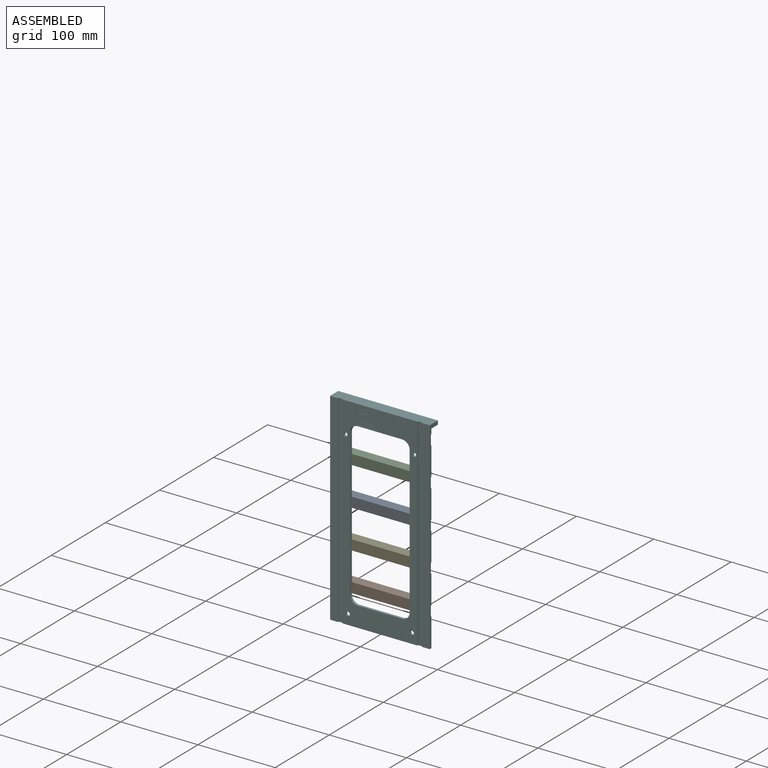
[diagram: assembled view]
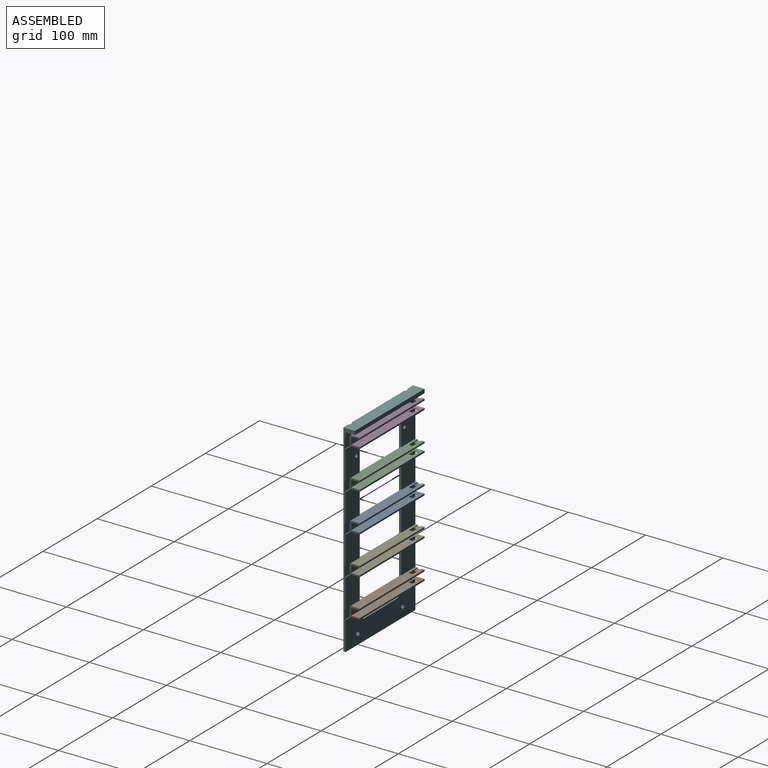
[diagram: assembled view, second angle]
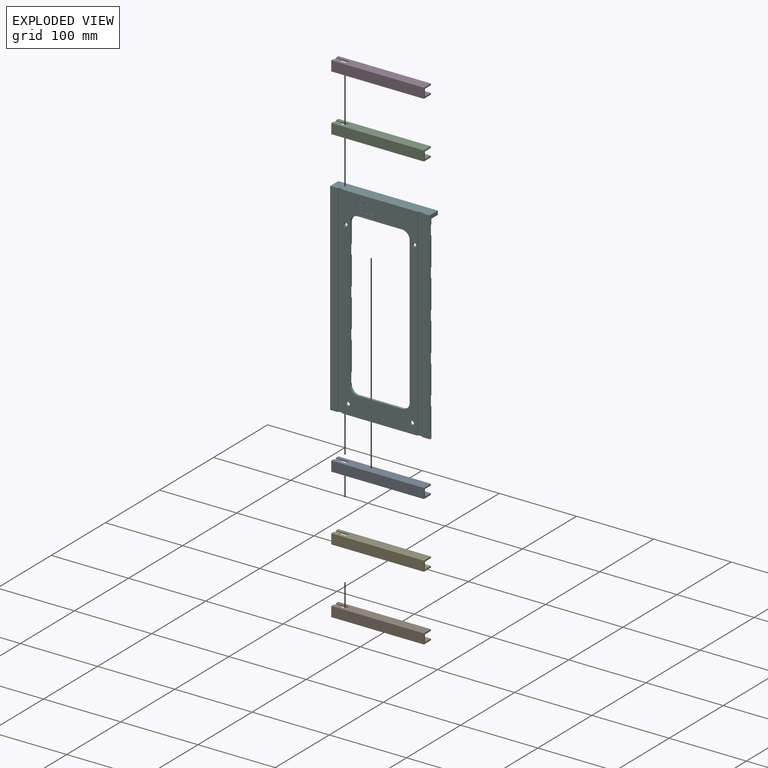
[diagram: exploded view]
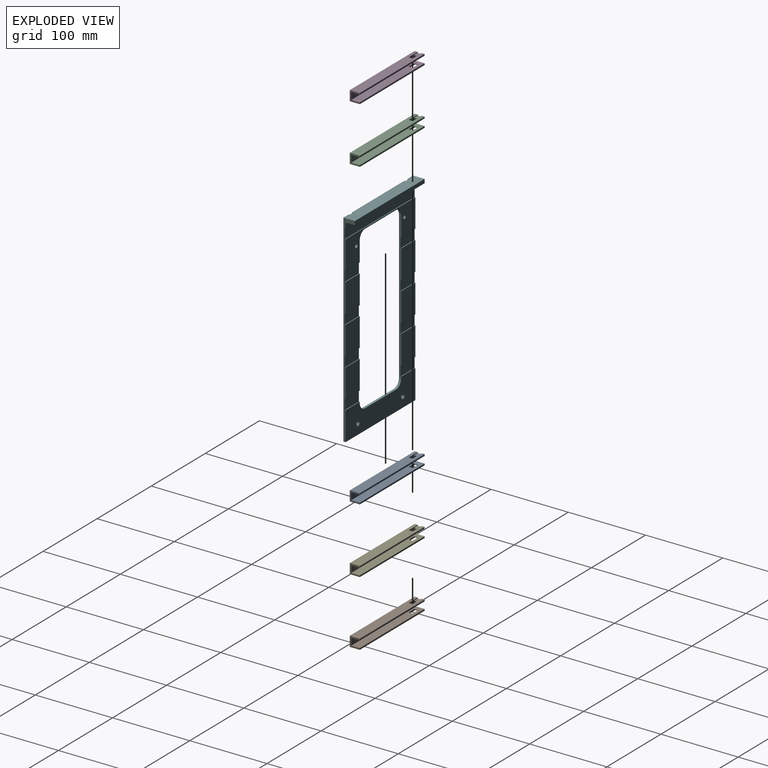
[diagram: exploded view, second angle]
ASSEMBLY  parts=6 mates=5
PART A: 24 faces, bbox 120x13x13 mm
  f0: plane 120x13mm, normal (0,0,-1), area 1477.5mm2, adj f3,f6,f7,f8,f13,f14,f16
  f1: plane 120x11mm, normal (0,0,-1), area 1270mm2, adj f3,f5,f6,f9,f10,f11,f18,f19
  f2: plane 120x11mm, normal (0,0,1), area 1270mm2, adj f3,f6,f7,f9,f13,f14,f16,f17
  f3: plane 13x13mm, normal (1,0,0), area 57mm2, adj f0,f1,f2,f4,f5,f7,f8,f9
  f4: plane 120x13mm, normal (0,0,1), area 1477.5mm2, adj f3,f5,f6,f8,f10,f11,f19
  f5: plane 120x2mm, normal (0,-1,0), area 240mm2, adj f1,f3,f4,f6
  f6: plane 13x13mm, normal (-1,0,0), area 70mm2, adj f0,f1,f2,f4,f5,f7,f8,f9
  f7: plane 120x2mm, normal (0,-1,0), area 240mm2, adj f0,f2,f3,f6
  f8: plane 120x13mm, normal (0,1,0), area 1560mm2, adj f0,f3,f4,f6
  f9: plane 120x9mm, normal (0,-1,0), area 1080mm2, adj f1,f2,f3,f6
  f10: plane 16.5x2mm, normal (0,-1,0), area 26.5mm2, adj f1,f3,f4,f12,f18,f19,f21,f23
  f11: plane 16.5x2mm, normal (0,1,0), area 26.5mm2, adj f1,f3,f4,f12,f18,f19,f21,f23
  f12: plane 5.9x5mm, normal (0,0,1), area 29.5mm2, adj f10,f11,f21,f23
  f13: plane 16.5x2mm, normal (0,1,0), area 26.5mm2, adj f0,f2,f3,f15,f16,f17,f20,f22
  f14: plane 16.5x2mm, normal (0,-1,0), area 26.5mm2, adj f0,f2,f3,f15,f16,f17,f20,f22
  f15: plane 5.9x5mm, normal (0,0,-1), area 29.5mm2, adj f13,f14,f20,f22
  f16: plane 5x2mm, normal (1,0,0), area 10mm2, adj f0,f2,f13,f14
  f17: plane 5x0.7mm, normal (-1,0,0), area 3.5mm2, adj f2,f13,f14,f20
  f18: plane 5x0.7mm, normal (-1,0,0), area 3.5mm2, adj f1,f10,f11,f21
  f19: plane 5x2mm, normal (1,0,0), area 10mm2, adj f1,f4,f10,f11
  f20: cylinder r=0.3mm len=5mm, axis (0,1,0), area 2.4mm2, adj f13,f14,f15,f17
  f21: cylinder r=0.3mm len=5mm, axis (0,-1,0), area 2.4mm2, adj f10,f11,f12,f18
  f22: cylinder r=0.3mm len=5mm, axis (0,1,0), area 2.4mm2, adj f3,f13,f14,f15
  f23: cylinder r=0.3mm len=5mm, axis (0,1,0), area 2.4mm2, adj f3,f10,f11,f12
PART B: same geometry as A
PART C: same geometry as A
PART D: same geometry as A
PART E: same geometry as A
PART F: 201 faces, bbox 129x15x262 mm
  f0: plane 23.5x23.5mm, normal (0,-1,0), area 475.6mm2, adj f68,f69,f70,f71,f72,f73,f74,f75
  f1: plane 262x97mm, normal (0,-1,0), area 8705.2mm2, adj f3,f4,f5,f14,f15,f19,f20,f21
  f2: plane 262x10mm, normal (0,-1,0), area 2620mm2, adj f3,f16,f19,f66
  f3: plane 129x15mm, normal (0,0,1), area 1919.4mm2, adj f1,f2,f16,f18,f28,f29,f62,f63
  f4: cylinder r=2.4mm len=4.8mm, axis (0,1,0), area 27.1mm2, adj f1,f61
  f5: cylinder r=2.4mm len=4.8mm, axis (0,1,0), area 27.1mm2, adj f1,f59
  f6: plane 129x37mm, normal (0,1,0), area 2038.5mm2, adj f14,f15,f16,f18,f21,f22,f23,f26
  f7: plane 129x37.4mm, normal (0,1,0), area 3933.2mm2, adj f14,f15,f16,f18,f19,f20,f24,f25
  f8: plane 37x26mm, normal (0,1,0), area 962mm2, adj f15,f16,f38,f42
  f9: plane 37x26mm, normal (0,1,0), area 962mm2, adj f14,f18,f53,f55
  f10: plane 37x26mm, normal (0,1,0), area 962mm2, adj f15,f16,f35,f39
  f11: plane 37x26mm, normal (0,1,0), area 962mm2, adj f14,f18,f50,f52
  f12: plane 37x26mm, normal (0,1,0), area 962mm2, adj f15,f16,f32,f36
  f13: plane 37x26mm, normal (0,1,0), area 962mm2, adj f14,f18,f47,f49
  f14: plane 190x3mm, normal (1,0,0), area 518mm2, adj f1,f6,f7,f9,f11,f13,f20,f21
  f15: plane 190x3mm, normal (-1,0,0), area 518mm2, adj f1,f6,f7,f8,f10,f12,f23,f24
  f16: plane 262x15mm, normal (1,0,0), area 781mm2, adj f2,f3,f6,f7,f8,f10,f12,f17
  f17: plane 129x6.6mm, normal (0,1,0), area 851.4mm2, adj f16,f18,f30,f43
  f18: plane 262x15mm, normal (-1,0,0), area 781mm2, adj f3,f6,f7,f9,f11,f13,f17,f19
  f19: plane 129x3mm, normal (0,0,-1), area 371.4mm2, adj f1,f2,f7,f16,f18,f28,f62,f63
  f20: cylinder r=10mm len=10mm, axis (0,1,0), area 47.1mm2, adj f1,f7,f14,f25
  f21: cylinder r=10mm len=10mm, axis (0,1,0), area 47.1mm2, adj f1,f6,f14,f22
  f22: plane 57x3mm, normal (0,0,-1), area 171mm2, adj f1,f6,f21,f23
  f23: cylinder r=10mm len=10mm, axis (0,1,0), area 47.1mm2, adj f1,f6,f15,f22
  f24: cylinder r=10mm len=10mm, axis (0,1,0), area 47.1mm2, adj f1,f7,f15,f25
  f25: plane 57x3mm, normal (0,0,1), area 171mm2, adj f1,f7,f20,f24
  f26: cylinder r=2.4mm len=4.8mm, axis (0,1,0), area 45.2mm2, adj f1,f6
  f27: cylinder r=2.4mm len=4.8mm, axis (0,1,0), area 45.2mm2, adj f1,f6
  f28: plane 262x10mm, normal (0,-1,0), area 2620mm2, adj f3,f18,f19,f62
  f29: plane 129x5mm, normal (0,1,0), area 645mm2, adj f3,f16,f18,f30
  f30: plane 129x12mm, normal (0,0,-1), area 1548mm2, adj f16,f17,f18,f29
  f31: plane 26x13mm, normal (0,1,0), area 338mm2, adj f15,f16,f32,f33
  f32: plane 26x1mm, normal (0,0,1), area 26mm2, adj f12,f15,f16,f31
  f33: plane 26x1mm, normal (0,0,-1), area 26mm2, adj f6,f15,f16,f31
  f34: plane 26x13mm, normal (0,1,0), area 338mm2, adj f15,f16,f35,f36
  f35: plane 26x1mm, normal (0,0,1), area 26mm2, adj f10,f15,f16,f34
  f36: plane 26x1mm, normal (0,0,-1), area 26mm2, adj f12,f15,f16,f34
  f37: plane 26x13mm, normal (0,1,0), area 338mm2, adj f15,f16,f38,f39
  f38: plane 26x1mm, normal (0,0,1), area 26mm2, adj f8,f15,f16,f37
  f39: plane 26x1mm, normal (0,0,-1), area 26mm2, adj f10,f15,f16,f37
  f40: plane 26x13mm, normal (0,1,0), area 338mm2, adj f15,f16,f41,f42
  f41: plane 26x1mm, normal (0,0,1), area 26mm2, adj f7,f15,f16,f40
  f42: plane 26x1mm, normal (0,0,-1), area 26mm2, adj f8,f15,f16,f40
  f43: plane 129x1mm, normal (0,0,-1), area 129mm2, adj f16,f17,f18,f45
  f44: plane 129x1mm, normal (0,0,1), area 129mm2, adj f6,f16,f18,f45
  f45: plane 129x13mm, normal (0,1,0), area 1677mm2, adj f16,f18,f43,f44
  f46: plane 26x1mm, normal (0,0,-1), area 26mm2, adj f6,f14,f18,f48
  f47: plane 26x1mm, normal (0,0,1), area 26mm2, adj f13,f14,f18,f48
  f48: plane 26x13mm, normal (0,1,0), area 338mm2, adj f14,f18,f46,f47
  f49: plane 26x1mm, normal (0,0,-1), area 26mm2, adj f13,f14,f18,f51
  f50: plane 26x1mm, normal (0,0,1), area 26mm2, adj f11,f14,f18,f51
  f51: plane 26x13mm, normal (0,1,0), area 338mm2, adj f14,f18,f49,f50
  f52: plane 26x1mm, normal (0,0,-1), area 26mm2, adj f11,f14,f18,f54
  f53: plane 26x1mm, normal (0,0,1), area 26mm2, adj f9,f14,f18,f54
  f54: plane 26x13mm, normal (0,1,0), area 338mm2, adj f14,f18,f52,f53
  f55: plane 26x1mm, normal (0,0,-1), area 26mm2, adj f9,f14,f18,f57
  f56: plane 26x1mm, normal (0,0,1), area 26mm2, adj f7,f14,f18,f57
  f57: plane 26x13mm, normal (0,1,0), area 338mm2, adj f14,f18,f55,f56
  f58: cylinder r=3mm len=6mm, axis (0,1,0), area 22.6mm2, adj f7,f59
  f59: plane 6x6mm, normal (0,1,0), area 10.2mm2, adj f5,f58
  f60: cylinder r=3mm len=6mm, axis (0,1,0), area 22.6mm2, adj f7,f61
  f61: plane 6x6mm, normal (0,1,0), area 10.2mm2, adj f4,f60
  f62: plane 262x1.3mm, normal (1,0,0), area 340.6mm2, adj f3,f19,f28,f64
  f63: plane 262x1.3mm, normal (-1,0,0), area 340.6mm2, adj f1,f3,f19,f64
  f64: plane 262x6mm, normal (0,-1,0), area 1572mm2, adj f3,f19,f62,f63
  f65: plane 262x1.3mm, normal (1,0,0), area 340.6mm2, adj f1,f3,f19,f67
  f66: plane 262x1.3mm, normal (-1,0,0), area 340.6mm2, adj f2,f3,f19,f67
  f67: plane 262x6mm, normal (0,-1,0), area 1572mm2, adj f3,f19,f65,f66
  f68: plane 23.5x0.5mm, normal (0,0,-1), area 11.7mm2, adj f0,f1,f69,f71
  f69: plane 23.5x0.5mm, normal (1,0,0), area 11.8mm2, adj f0,f1,f68,f70
  f70: plane 23.5x0.5mm, normal (0,0,1), area 11.7mm2, adj f0,f1,f69,f71
  f71: plane 23.5x0.5mm, normal (-1,0,0), area 11.8mm2, adj f0,f1,f68,f70
  f72: plane 0.55x0.5mm, normal (1,0,0), area 0.3mm2, adj f0,f73,f75,f76
  f73: plane 1.78x0.5mm, normal (0,0,1), area 0.9mm2, adj f0,f72,f74,f76
  f74: plane 0.55x0.5mm, normal (-1,0,0), area 0.3mm2, adj f0,f73,f75,f76
  f75: plane 1.78x0.5mm, normal (0,0,-1), area 0.9mm2, adj f0,f72,f74,f76
  f76: plane 1.78x0.55mm, normal (0,-1,0), area 1mm2, adj f72,f73,f74,f75
  f77: extruded ~0.76x0.5mm, area 0.4mm2, adj f78,f95,f96,f196
  f78: extruded ~0.73x0.5mm, area 0.4mm2, adj f77,f79,f96,f196
  f79: extruded ~0.87x0.5mm, area 0.5mm2, adj f78,f80,f96,f196
  f80: plane 2.08x0.5mm, normal (0,0,-1), area 1mm2, adj f79,f95,f96,f196
  f81: extruded ~1.39x0.54mm, area 0.8mm2, adj f0,f82,f94,f96
  f82: extruded ~0.69x0.5mm, area 0.3mm2, adj f0,f81,f83,f96
  f83: extruded ~0.6x0.5mm, area 0.3mm2, adj f0,f82,f84,f96
  f84: plane 0.54x0.5mm, normal (-1,0,0), area 0.3mm2, adj f0,f83,f85,f96
  f85: extruded ~1.27x0.5mm, area 0.7mm2, adj f0,f84,f86,f96
  f86: extruded ~0.95x0.5mm, area 0.5mm2, adj f0,f85,f87,f96
  f87: extruded ~1.06x0.5mm, area 0.6mm2, adj f0,f86,f88,f96
  f88: plane 2.74x0.5mm, normal (0,0,1), area 1.4mm2, adj f0,f87,f89,f96
  f89: plane 0.5x0.38mm, normal (-1,0,0), area 0.2mm2, adj f0,f88,f90,f96
  f90: extruded ~1.3x0.5mm, area 0.7mm2, adj f0,f89,f91,f96
  f91: extruded ~1.18x0.5mm, area 0.7mm2, adj f0,f90,f92,f96
  f92: extruded ~1.27x0.57mm, area 0.7mm2, adj f0,f91,f93,f96
  f93: extruded ~1.53x0.5mm, area 0.8mm2, adj f0,f92,f94,f96
  f94: extruded ~1.49x0.51mm, area 0.8mm2, adj f0,f81,f93,f96
  f95: extruded ~0.86x0.5mm, area 0.5mm2, adj f77,f80,f96,f196
  f96: plane 4.12x3.37mm, normal (0,-1,0), area 6.3mm2, adj f77,f78,f79,f80,f81,f82,f83,f84
  f97: extruded ~0.89x0.5mm, area 0.5mm2, adj f98,f120,f121,f197
  f98: extruded ~0.82x0.5mm, area 0.5mm2, adj f97,f99,f121,f197
  f99: extruded ~1.15x0.5mm, area 0.6mm2, adj f98,f100,f121,f197
  f100: extruded ~1.16x0.5mm, area 0.6mm2, adj f99,f101,f121,f197
  f101: extruded ~0.81x0.5mm, area 0.5mm2, adj f100,f102,f121,f197
  f102: extruded ~0.9x0.5mm, area 0.5mm2, adj f101,f103,f121,f197
  f103: extruded ~1.21x0.5mm, area 0.6mm2, adj f102,f104,f121,f197
  f104: plane 0.5x0.13mm, normal (1,0,0), area 0.1mm2, adj f103,f120,f121,f197
  f105: plane 0.5x0.03mm, normal (0,0,1), area 0mm2, adj f0,f106,f119,f121
  f106: plane 0.53x0.5mm, normal (0.99,0,0.15), area 0.3mm2, adj f0,f105,f107,f121
  f107: plane 0.5x0.49mm, normal (0,0,1), area 0.2mm2, adj f0,f106,f108,f121
  f108: plane 5.65x0.5mm, normal (-1,0,0), area 2.8mm2, adj f0,f107,f109,f121
  f109: plane 0.6x0.5mm, normal (0,0,-1), area 0.3mm2, adj f0,f108,f110,f121
  f110: plane 1.62x0.5mm, normal (1,0,0), area 0.8mm2, adj f0,f109,f111,f121
  f111: plane 0.5x0.28mm, normal (1,0,0.05), area 0.1mm2, adj f0,f110,f112,f121
  f112: plane 0.5x0.29mm, normal (1,0,0.09), area 0.1mm2, adj f0,f111,f113,f121
  f113: plane 0.5x0.05mm, normal (0,0,-1), area 0mm2, adj f0,f112,f114,f121
  f114: extruded ~1.24x0.59mm, area 0.7mm2, adj f0,f113,f115,f121
  f115: extruded ~1.21x0.54mm, area 0.7mm2, adj f0,f114,f116,f121
  f116: extruded ~1.53x0.5mm, area 0.8mm2, adj f0,f115,f117,f121
  f117: extruded ~1.52x0.5mm, area 0.8mm2, adj f0,f116,f118,f121
  f118: extruded ~1.21x0.53mm, area 0.7mm2, adj f0,f117,f119,f121
  f119: extruded ~1.25x0.61mm, area 0.7mm2, adj f0,f105,f118,f121
  f120: extruded ~1.08x0.5mm, area 0.6mm2, adj f97,f104,f121,f197
  f121: plane 5.72x3.5mm, normal (0,-1,0), area 7.7mm2, adj f97,f98,f99,f100,f101,f102,f103,f104
  f122: extruded ~1.38x0.58mm, area 0.8mm2, adj f0,f123,f136,f137
  f123: extruded ~1.21x0.5mm, area 0.6mm2, adj f0,f122,f124,f137
  f124: plane 0.53x0.5mm, normal (-0.9,0,0.44), area 0.3mm2, adj f0,f123,f125,f137
  f125: extruded ~1.46x0.5mm, area 0.8mm2, adj f0,f124,f126,f137
  f126: extruded ~1.36x0.5mm, area 0.7mm2, adj f0,f125,f127,f137
  f127: extruded ~0.95x0.89mm, area 0.7mm2, adj f0,f126,f128,f137
  f128: extruded ~1.44x0.5mm, area 0.7mm2, adj f0,f127,f129,f137
  f129: extruded ~2.02x0.64mm, area 1.1mm2, adj f0,f128,f130,f137
  f130: extruded ~1.81x0.71mm, area 1mm2, adj f0,f129,f131,f137
  f131: extruded ~1.36x0.5mm, area 0.7mm2, adj f0,f130,f132,f137
  f132: plane 0.54x0.5mm, normal (-1,0,0), area 0.3mm2, adj f0,f131,f133,f137
  f133: extruded ~1.27x0.5mm, area 0.6mm2, adj f0,f132,f134,f137
  f134: extruded ~1.39x0.57mm, area 0.8mm2, adj f0,f133,f135,f137
  f135: extruded ~1.61x0.5mm, area 0.9mm2, adj f0,f134,f136,f137
  f136: extruded ~1.6x0.51mm, area 0.9mm2, adj f0,f122,f135,f137
  f137: plane 5.46x4.01mm, normal (0,-1,0), area 6.2mm2, adj f122,f123,f124,f125,f126,f127,f128,f129
  f138: extruded ~1.64x0.5mm, area 0.9mm2, adj f139,f157,f158,f198
  f139: extruded ~1.62x0.5mm, area 0.9mm2, adj f138,f140,f158,f198
  f140: extruded ~1.34x0.56mm, area 0.8mm2, adj f139,f141,f158,f198
  f141: extruded ~1.33x0.55mm, area 0.7mm2, adj f140,f142,f158,f198
  f142: extruded ~1.62x0.5mm, area 0.9mm2, adj f141,f143,f158,f198
  f143: extruded ~1.64x0.5mm, area 0.9mm2, adj f142,f144,f158,f198
  f144: extruded ~1.33x0.56mm, area 0.7mm2, adj f143,f157,f158,f198
  f145: extruded ~1.7x0.5mm, area 0.9mm2, adj f0,f146,f156,f158
  f146: extruded ~2x0.64mm, area 1.1mm2, adj f0,f145,f147,f158
  f147: extruded ~1.79x0.73mm, area 1mm2, adj f0,f146,f148,f158
  f148: extruded ~1.81x0.71mm, area 1mm2, adj f0,f147,f149,f158
  f149: extruded ~2.01x0.64mm, area 1.1mm2, adj f0,f148,f150,f158
  f150: extruded ~2.02x0.64mm, area 1.1mm2, adj f0,f149,f151,f158
  f151: extruded ~1.81x0.72mm, area 1mm2, adj f0,f150,f152,f158
  f152: plane 0.5x0.2mm, normal (-0.04,0,1), area 0.1mm2, adj f0,f151,f153,f158
  f153: plane 1.2x1.03mm, normal (0.76,0,0.65), area 0.8mm2, adj f0,f152,f154,f158
  f154: plane 0.9x0.5mm, normal (0,0,1), area 0.4mm2, adj f0,f153,f155,f158
  f155: plane 1.32x1.26mm, normal (-0.72,0,-0.69), area 0.9mm2, adj f0,f154,f156,f158
  f156: extruded ~1.16x0.91mm, area 0.8mm2, adj f0,f145,f155,f158
  f157: extruded ~1.33x0.56mm, area 0.7mm2, adj f138,f144,f158,f198
  f158: plane 6.65x4.88mm, normal (0,-1,0), area 10mm2, adj f138,f139,f140,f141,f142,f143,f144,f145
  f159: plane 0.85x0.5mm, normal (0,0,-1), area 0.4mm2, adj f160,f176,f177,f199
  f160: plane 2.03x0.5mm, normal (-1,0,0), area 1mm2, adj f159,f161,f177,f199
  f161: plane 0.8x0.5mm, normal (0,0,1), area 0.4mm2, adj f160,f162,f177,f199
  f162: extruded ~1x0.5mm, area 0.5mm2, adj f161,f163,f177,f199
  f163: extruded ~0.76x0.5mm, area 0.4mm2, adj f162,f164,f177,f199
  f164: extruded ~0.78x0.5mm, area 0.4mm2, adj f163,f176,f177,f199
  f165: plane 2.21x0.5mm, normal (-1,0,0), area 1.1mm2, adj f0,f166,f175,f177
  f166: plane 1.11x0.5mm, normal (0,0,1), area 0.6mm2, adj f0,f165,f167,f177
  f167: plane 2.21x1.28mm, normal (0.86,0,0.5), area 1.3mm2, adj f0,f166,f168,f177
  f168: plane 0.73x0.5mm, normal (0,0,1), area 0.4mm2, adj f0,f167,f169,f177
  f169: plane 2.38x1.44mm, normal (-0.86,0,-0.52), area 1.4mm2, adj f0,f168,f170,f177
  f170: extruded ~1.42x1.07mm, area 1mm2, adj f0,f169,f171,f177
  f171: extruded ~1.13x0.5mm, area 0.6mm2, adj f0,f170,f172,f177
  f172: extruded ~1.44x0.5mm, area 0.8mm2, adj f0,f171,f173,f177
  f173: plane 1.46x0.5mm, normal (0,0,-1), area 0.7mm2, adj f0,f172,f174,f177
  f174: plane 5.31x0.5mm, normal (1,0,0), area 2.7mm2, adj f0,f173,f175,f177
  f175: plane 0.62x0.5mm, normal (0,0,1), area 0.3mm2, adj f0,f165,f174,f177
  f176: extruded ~0.96x0.5mm, area 0.5mm2, adj f159,f164,f177,f199
  f177: plane 5.31x3.74mm, normal (0,-1,0), area 8.4mm2, adj f159,f160,f161,f162,f163,f164,f165,f166
  f178: extruded ~1.16x0.5mm, area 0.6mm2, adj f179,f194,f195,f200
  f179: extruded ~1.16x0.5mm, area 0.6mm2, adj f178,f180,f195,f200
  f180: extruded ~0.89x0.5mm, area 0.5mm2, adj f179,f181,f195,f200
  f181: extruded ~0.91x0.5mm, area 0.5mm2, adj f180,f182,f195,f200
  f182: extruded ~1.15x0.5mm, area 0.6mm2, adj f181,f183,f195,f200
  f183: extruded ~1.16x0.5mm, area 0.6mm2, adj f182,f184,f195,f200
  f184: extruded ~0.9x0.5mm, area 0.5mm2, adj f183,f194,f195,f200
  f185: extruded ~1.52x0.5mm, area 0.8mm2, adj f0,f186,f193,f195
  f186: extruded ~1.5x0.5mm, area 0.8mm2, adj f0,f185,f187,f195
  f187: extruded ~1.33x0.56mm, area 0.7mm2, adj f0,f186,f188,f195
  f188: extruded ~1.35x0.54mm, area 0.8mm2, adj f0,f187,f189,f195
  f189: extruded ~1.52x0.5mm, area 0.8mm2, adj f0,f188,f190,f195
  f190: extruded ~1.1x0.5mm, area 0.6mm2, adj f0,f189,f191,f195
  f191: extruded ~0.72x0.64mm, area 0.5mm2, adj f0,f190,f192,f195
  f192: extruded ~0.95x0.5mm, area 0.5mm2, adj f0,f191,f193,f195
  f193: extruded ~1.35x0.55mm, area 0.8mm2, adj f0,f185,f192,f195
  f194: extruded ~0.9x0.5mm, area 0.5mm2, adj f178,f184,f195,f200
  f195: plane 4.12x3.66mm, normal (0,-1,0), area 6.1mm2, adj f178,f179,f180,f181,f182,f183,f184,f185
  f196: plane 2.08x1.18mm, normal (0,-1,0), area 2mm2, adj f77,f78,f79,f80,f95
  f197: plane 3.11x2.27mm, normal (0,-1,0), area 5.9mm2, adj f97,f98,f99,f100,f101,f102,f103,f104
  f198: plane 4.37x3.58mm, normal (0,-1,0), area 13mm2, adj f138,f139,f140,f141,f142,f143,f144,f157
  f199: plane 2.11x2.03mm, normal (0,-1,0), area 3.9mm2, adj f159,f160,f161,f162,f163,f164,f176
  f200: plane 3.11x2.41mm, normal (0,-1,0), area 6.2mm2, adj f178,f179,f180,f181,f182,f183,f184,f194
PLACE A rot(axis=(0,0,1),180deg) t=(-6.33,2.64,15.4)mm
PLACE B rot(axis=(0,0,1),180deg) t=(-6.33,2.64,-84.6)mm
PLACE C rot(axis=(0,0,1),180deg) t=(-6.33,2.64,65.4)mm
PLACE D rot(axis=(0,0,1),180deg) t=(-6.33,2.64,115.4)mm
PLACE E rot(axis=(0,0,1),180deg) t=(-6.33,2.64,-34.6)mm
PLACE F t=(-9.3,3.64,0.84)mm
MATE fastened A.f4 <-> F.f49  axis (0,0,1) through (-69.34,2.64,35.81)mm
MATE fastened D.f4 <-> F.f43  axis (0,0,1) through (-69.34,2.64,135.81)mm
MATE fastened B.f4 <-> F.f55  axis (0,0,1) through (-69.34,2.64,-64.19)mm
MATE fastened C.f4 <-> F.f46  axis (0,0,1) through (-69.34,2.64,85.81)mm
MATE fastened E.f4 <-> F.f52  axis (0,0,1) through (-69.34,2.64,-14.19)mm
